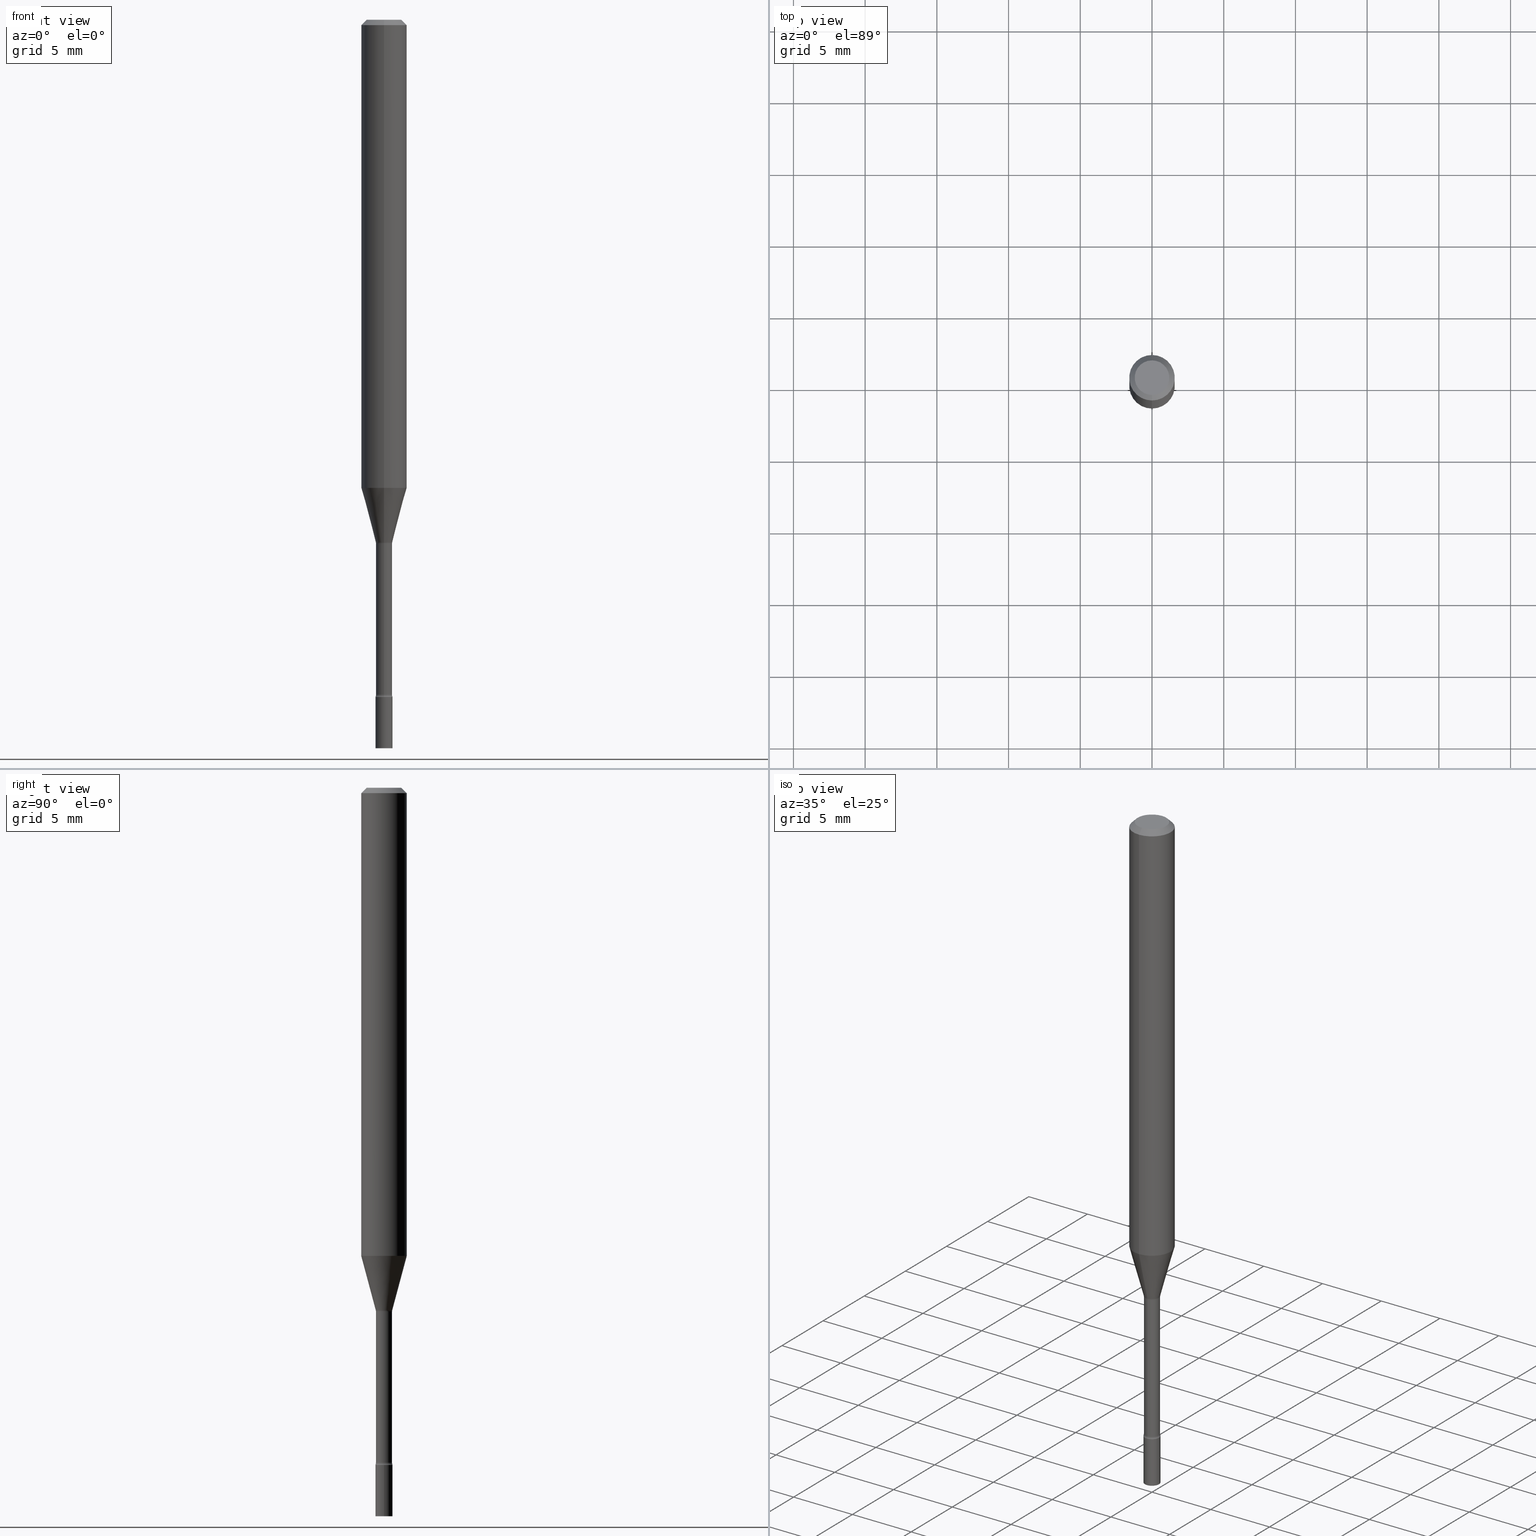
[diagram: canonical four-view strip — front | top / right | iso, engineering-drawing reading convention]
A machine part, canonical four-view strip (front | top / right | iso — engineering-drawing reading convention). The complete STEP part file that produces these views, byte-faithful:
ISO-10303-21;
HEADER;
FILE_DESCRIPTION (( 'STEP AP203' ),
    '1' );
FILE_NAME ('09370.STEP',
    '2024-03-08T23:25:55',
    ( '' ),
    ( '' ),
    'SwSTEP 2.0',
    'SolidWorks 2023',
    '' );
FILE_SCHEMA (( 'CONFIG_CONTROL_DESIGN' ));
ENDSEC;

DATA;
#1 = DIRECTION ( 'NONE',  ( -6.982962677686265922E-15, -1.000000000000000000, 0.000000000000000000 ) ) ;
#2 = ADVANCED_FACE ( 'NONE', ( #157 ), #231, .T. ) ;
#3 = AXIS2_PLACEMENT_3D ( 'NONE', #126, #411, #373 ) ;
#4 = CYLINDRICAL_SURFACE ( 'NONE', #292, 0.02210000000000002587 ) ;
#5 = CARTESIAN_POINT ( 'NONE',  ( 0.02350000000000000352, -6.654763431835035084E-15, -1.858999999999999986 ) ) ;
#6 = DIRECTION ( 'NONE',  ( -6.982962677686265922E-15, -1.000000000000000000, 0.000000000000000000 ) ) ;
#7 = DIRECTION ( 'NONE',  ( -6.982962677686265922E-15, -1.000000000000000000, 0.000000000000000000 ) ) ;
#8 = EDGE_CURVE ( 'NONE', #500, #516, #32, .T. ) ;
#9 = CARTESIAN_POINT ( 'NONE',  ( 4.440892098500625669E-16, 0.06250000000000000000, -2.182167078137229810E-16 ) ) ;
#10 = EDGE_LOOP ( 'NONE', ( #148, #470, #172, #480 ) ) ;
#11 = FACE_OUTER_BOUND ( 'NONE', #384, .T. ) ;
#12 = CIRCLE ( 'NONE', #518, 0.06250000000000000000 ) ;
#13 = ORIENTED_EDGE ( 'NONE', *, *, #67, .T. ) ;
#14 = LINE ( 'NONE', #26, #149 ) ;
#15 = ORIENTED_EDGE ( 'NONE', *, *, #512, .F. ) ;
#16 = EDGE_CURVE ( 'NONE', #372, #215, #336, .T. ) ;
#17 = FACE_OUTER_BOUND ( 'NONE', #338, .T. ) ;
#18 = CLOSED_SHELL ( 'NONE', ( #125, #246, #377, #352, #2, #50, #300, #286, #97, #30, #207, #465, #354, #53 ) ) ;
#19 = VERTEX_POINT ( 'NONE', #5 ) ;
#20 = CIRCLE ( 'NONE', #401, 0.01499999999999998904 ) ;
#21 = AXIS2_PLACEMENT_3D ( 'NONE', #468, #380, #182 ) ;
#22 = CARTESIAN_POINT ( 'NONE',  ( -1.578925554262779717E-16, -0.02261111260566898637, -1.434092501787273211 ) ) ;
#23 = CARTESIAN_POINT ( 'NONE',  ( -4.364351673553916201E-16, -0.06250000000000000000, 2.182167078137229810E-16 ) ) ;
#24 = VERTEX_POINT ( 'NONE', #47 ) ;
#25 = EDGE_CURVE ( 'NONE', #215, #61, #158, .T. ) ;
#26 = CARTESIAN_POINT ( 'NONE',  ( 1.570299446029823003E-16, 0.02210000000000002587, -7.716142788293254101E-17 ) ) ;
#27 = DIRECTION ( 'NONE',  ( -6.982962677686265922E-15, -1.000000000000000000, 0.000000000000000000 ) ) ;
#28 = EDGE_LOOP ( 'NONE', ( #345, #31, #102, #259 ) ) ;
#29 = PERSON_AND_ORGANIZATION ( #494, #195 ) ;
#30 = ADVANCED_FACE ( 'NONE', ( #318 ), #397, .F. ) ;
#31 = ORIENTED_EDGE ( 'NONE', *, *, #201, .F. ) ;
#32 = CIRCLE ( 'NONE', #425, 0.06250000000000000000 ) ;
#33 = CIRCLE ( 'NONE', #75, 0.02261111260566397996 ) ;
#34 = LOCAL_TIME ( 18, 25, 55.00000000000000000, #69 ) ;
#35 = APPROVAL_DATE_TIME ( #388, #360 ) ;
#36 = VERTEX_POINT ( 'NONE', #127 ) ;
#37 = EDGE_CURVE ( 'NONE', #72, #279, #80, .T. ) ;
#38 = APPROVAL_DATE_TIME ( #187, #508 ) ;
#39 = ORIENTED_EDGE ( 'NONE', *, *, #181, .T. ) ;
#40 = COORDINATED_UNIVERSAL_TIME_OFFSET ( 5, 0, .BEHIND. ) ;
#41 = DIRECTION ( 'NONE',  ( -6.982962677686265922E-15, -1.000000000000000000, 4.370956789862821150E-15 ) ) ;
#42 = DIRECTION ( 'NONE',  ( -6.982962677686265922E-15, -1.000000000000000000, 0.000000000000000000 ) ) ;
#43 = AXIS2_PLACEMENT_3D ( 'NONE', #131, #469, #225 ) ;
#44 = AXIS2_PLACEMENT_3D ( 'NONE', #371, #453, #52 ) ;
#45 = PLANE ( 'NONE',  #173 ) ;
#46 = CARTESIAN_POINT ( 'NONE',  ( 4.364351673553919652E-16, 0.06249999999999995143, -0.01500000000000024751 ) ) ;
#47 = CARTESIAN_POINT ( 'NONE',  ( 0.02350000000000000352, -7.147062300611918023E-15, -2.000000000000000000 ) ) ;
#48 = CARTESIAN_POINT ( 'NONE',  ( 4.890937612370273194E-29, -6.982962677686291165E-15, -2.000000000000000000 ) ) ;
#49 = CARTESIAN_POINT ( 'NONE',  ( -1.578925554262779717E-16, -0.02261111260566898637, -1.434092501787273211 ) ) ;
#50 = ADVANCED_FACE ( 'NONE', ( #129 ), #202, .T. ) ;
#51 = TOROIDAL_SURFACE ( 'NONE', #183, 0.03710000000000000103, 0.01500000000000002720 ) ;
#52 = DIRECTION ( 'NONE',  ( 1.000000000000000000, -6.982962677686269866E-15, 0.000000000000000000 ) ) ;
#53 = ADVANCED_FACE ( 'NONE', ( #170 ), #166, .F. ) ;
#54 = CARTESIAN_POINT ( 'NONE',  ( 3.516536558558135871E-29, -5.020641984631854302E-15, -1.437974787463811133 ) ) ;
#55 = DIRECTION ( 'NONE',  ( -2.445478591985838029E-29, 3.491467325019567696E-15, 1.000000000000000000 ) ) ;
#56 = AXIS2_PLACEMENT_3D ( 'NONE', #135, #184, #296 ) ;
#57 = ORIENTED_EDGE ( 'NONE', *, *, #37, .T. ) ;
#58 = CC_DESIGN_APPROVAL ( #508, ( #301 ) ) ;
#59 = EDGE_CURVE ( 'NONE', #501, #226, #263, .T. ) ;
#60 = DIRECTION ( 'NONE',  ( -6.982962677686266711E-15, -1.000000000000000000, 3.491467325019567302E-15 ) ) ;
#61 = VERTEX_POINT ( 'NONE', #349 ) ;
#62 = PERSON_AND_ORGANIZATION_ROLE ( 'design_owner' ) ;
#63 = AXIS2_PLACEMENT_3D ( 'NONE', #121, #163, #282 ) ;
#64 = ORIENTED_EDGE ( 'NONE', *, *, #421, .F. ) ;
#65 = VECTOR ( 'NONE', #206, 39.37007874015749564 ) ;
#66 = DIRECTION ( 'NONE',  ( -2.445478591985838029E-29, 3.491467325019567696E-15, 1.000000000000000000 ) ) ;
#67 = EDGE_CURVE ( 'NONE', #143, #372, #107, .T. ) ;
#68 = CARTESIAN_POINT ( 'NONE',  ( -1.640996229255817445E-16, -0.02350000000000649139, -1.858999999999999986 ) ) ;
#69 = COORDINATED_UNIVERSAL_TIME_OFFSET ( 5, 0, .BEHIND. ) ;
#70 = ORIENTED_EDGE ( 'NONE', *, *, #59, .F. ) ;
#71 = CARTESIAN_POINT ( 'NONE',  ( 3.142990583785493865E-29, -4.487321607350540658E-15, -1.285225147374218002 ) ) ;
#72 = VERTEX_POINT ( 'NONE', #188 ) ;
#73 = DATE_TIME_ROLE ( 'classification_date' ) ;
#74 = DIRECTION ( 'NONE',  ( -2.445478591985838029E-29, 3.491467325019567696E-15, 1.000000000000000000 ) ) ;
#75 = AXIS2_PLACEMENT_3D ( 'NONE', #369, #55, #289 ) ;
#76 = LOCAL_TIME ( 18, 25, 55.00000000000000000, #474 ) ;
#77 = MANIFOLD_SOLID_BREP ( 'Body-Move/Copy2[1]', #415 ) ;
#78 = DIRECTION ( 'NONE',  ( -2.445478591985838029E-29, 3.491467325019567696E-15, 1.000000000000000000 ) ) ;
#79 = ORIENTED_EDGE ( 'NONE', *, *, #37, .F. ) ;
#80 = CIRCLE ( 'NONE', #291, 0.02209999999999999812 ) ;
#81 = CC_DESIGN_DATE_AND_TIME_ASSIGNMENT ( #519, #73, ( #301 ) ) ;
#82 = AXIS2_PLACEMENT_3D ( 'NONE', #332, #466, #505 ) ;
#83 = LOCAL_TIME ( 18, 25, 55.00000000000000000, #312 ) ;
#84 = CARTESIAN_POINT ( 'NONE',  ( 0.000000000000000000, 0.000000000000000000, 0.000000000000000000 ) ) ;
#85 = EDGE_CURVE ( 'NONE', #501, #516, #344, .T. ) ;
#86 = CARTESIAN_POINT ( 'NONE',  ( -1.543234751768313085E-16, -0.02210000000000501841, -1.437974787463811133 ) ) ;
#87 = DIRECTION ( 'NONE',  ( -2.445478591985838029E-29, 3.491467325019567696E-15, 1.000000000000000000 ) ) ;
#88 = CARTESIAN_POINT ( 'NONE',  ( 2.636113549670428316E-16, 0.03709999999999358949, -1.852672283192177582 ) ) ;
#89 = CARTESIAN_POINT ( 'NONE',  ( -1.543234751768666594E-16, -0.02210000000000002587, 7.716142788293254101E-17 ) ) ;
#90 = ADVANCED_FACE ( 'NONE', ( #228 ), #118, .T. ) ;
#91 = AXIS2_PLACEMENT_3D ( 'NONE', #429, #477, #93 ) ;
#92 = LINE ( 'NONE', #46, #306 ) ;
#93 = DIRECTION ( 'NONE',  ( -6.982962677686265922E-15, -1.000000000000000000, 3.491467325019568091E-15 ) ) ;
#94 = PLANE ( 'NONE',  #3 ) ;
#95 = ORIENTED_EDGE ( 'NONE', *, *, #290, .T. ) ;
#96 = DIRECTION ( 'NONE',  ( -6.982962677686265922E-15, -1.000000000000000000, 0.000000000000000000 ) ) ;
#97 = ADVANCED_FACE ( 'NONE', ( #467 ), #124, .T. ) ;
#98 = AXIS2_PLACEMENT_3D ( 'NONE', #370, #288, #7 ) ;
#99 = DIRECTION ( 'NONE',  ( 1.000000000000000000, -7.105427357601001070E-15, 4.926315336922240552E-29 ) ) ;
#100 = EDGE_LOOP ( 'NONE', ( #387, #108, #57, #256 ) ) ;
#101 = DIRECTION ( 'NONE',  ( -2.445478591985838029E-29, 3.491467325019567696E-15, 1.000000000000000000 ) ) ;
#102 = ORIENTED_EDGE ( 'NONE', *, *, #368, .T. ) ;
#103 = APPLICATION_PROTOCOL_DEFINITION ( 'international standard', 'config_control_design', 1994, #343 ) ;
#104 = DIRECTION ( 'NONE',  ( -6.982962677686265922E-15, -1.000000000000000000, 3.491467325019567696E-15 ) ) ;
#105 = CARTESIAN_POINT ( 'NONE',  ( -4.364351673553603615E-16, -0.06250000000000451028, -1.285225147374217780 ) ) ;
#106 = DIRECTION ( 'NONE',  ( -4.851104656540964275E-15, -0.7071067811865500152, -0.7071067811865450192 ) ) ;
#107 = CIRCLE ( 'NONE', #472, 0.02210000000000006057 ) ;
#108 = ORIENTED_EDGE ( 'NONE', *, *, #512, .T. ) ;
#109 = PERSON_AND_ORGANIZATION_ROLE ( 'creator' ) ;
#110 = FACE_OUTER_BOUND ( 'NONE', #229, .T. ) ;
#111 = EDGE_LOOP ( 'NONE', ( #222, #95, #307, #394 ) ) ;
#112 = PERSON_AND_ORGANIZATION ( #494, #195 ) ;
#113 = CARTESIAN_POINT ( 'NONE',  ( -4.287811248607203282E-16, -0.06250000000000005551, -0.01499999999999981209 ) ) ;
#114 = EDGE_LOOP ( 'NONE', ( #456, #428, #356, #177 ) ) ;
#115 = DESIGN_CONTEXT ( 'detailed design', #399, 'design' ) ;
#116 = EDGE_CURVE ( 'NONE', #462, #516, #507, .T. ) ;
#117 = APPROVAL_ROLE ( '' ) ;
#118 = CYLINDRICAL_SURFACE ( 'NONE', #147, 0.02350000000000000352 ) ;
#119 = EDGE_LOOP ( 'NONE', ( #452, #396, #139, #302 ) ) ;
#120 = TOROIDAL_SURFACE ( 'NONE', #132, 0.03710000000000005654, 0.01499999999999999077 ) ;
#121 = CARTESIAN_POINT ( 'NONE',  ( -2.590679153421155323E-16, -0.03710000000000652359, -1.852672283192177582 ) ) ;
#122 = CALENDAR_DATE ( 2024, 8, 3 ) ;
#123 = LINE ( 'NONE', #89, #141 ) ;
#124 = CONICAL_SURFACE ( 'NONE', #276, 0.06250000000000000000, 0.7853981633974483900 ) ;
#125 = ADVANCED_FACE ( 'NONE', ( #395 ), #51, .F. ) ;
#126 = CARTESIAN_POINT ( 'NONE',  ( 1.640996229256761859E-16, 0.02349999999999301953, -2.000000000000000000 ) ) ;
#127 = CARTESIAN_POINT ( 'NONE',  ( -0.02350000000000000352, -6.569835700394226398E-15, -1.858999999999999986 ) ) ;
#128 = DIRECTION ( 'NONE',  ( -1.000000000000000000, 6.982962677686265922E-15, -4.883557194083112340E-29 ) ) ;
#129 = FACE_OUTER_BOUND ( 'NONE', #305, .T. ) ;
#130 = DIRECTION ( 'NONE',  ( -6.982962677686265922E-15, -1.000000000000000000, 3.483106191921935554E-15 ) ) ;
#131 = CARTESIAN_POINT ( 'NONE',  ( 7.070997803370271275E-46, -1.009542993615190427E-31, -2.891457658448894287E-17 ) ) ;
#132 = AXIS2_PLACEMENT_3D ( 'NONE', #169, #495, #362 ) ;
#133 = DIRECTION ( 'NONE',  ( -6.982962677686265922E-15, -1.000000000000000000, 0.000000000000000000 ) ) ;
#134 = ORIENTED_EDGE ( 'NONE', *, *, #198, .F. ) ;
#135 = CARTESIAN_POINT ( 'NONE',  ( 4.530652276630265840E-29, -6.468570703757412318E-15, -1.852672283192177582 ) ) ;
#136 = CC_DESIGN_PERSON_AND_ORGANIZATION_ASSIGNMENT ( #160, #308, ( #402 ) ) ;
#137 = DIRECTION ( 'NONE',  ( -2.445478591985838029E-29, 3.491467325019567696E-15, 1.000000000000000000 ) ) ;
#138 = CYLINDRICAL_SURFACE ( 'NONE', #82, 0.02350000000000000352 ) ;
#139 = ORIENTED_EDGE ( 'NONE', *, *, #116, .T. ) ;
#140 = EDGE_CURVE ( 'NONE', #24, #270, #217, .T. ) ;
#141 = VECTOR ( 'NONE', #243, 39.37007874015748143 ) ;
#142 = CARTESIAN_POINT ( 'NONE',  ( -4.364351673553912750E-16, -0.06250000000000005551, -0.01499999999999981209 ) ) ;
#143 = VERTEX_POINT ( 'NONE', #261 ) ;
#144 = CARTESIAN_POINT ( 'NONE',  ( 4.530670406511994597E-29, -6.468544740734887756E-15, -1.852672283192177582 ) ) ;
#145 = DIRECTION ( 'NONE',  ( -2.445468806185136597E-29, 3.491481338843145583E-15, 1.000000000000000000 ) ) ;
#146 = EDGE_LOOP ( 'NONE', ( #374, #13, #298, #79 ) ) ;
#147 = AXIS2_PLACEMENT_3D ( 'NONE', #386, #272, #199 ) ;
#148 = ORIENTED_EDGE ( 'NONE', *, *, #140, .T. ) ;
#149 = VECTOR ( 'NONE', #376, 39.37007874015748143 ) ;
#150 = PERSON_AND_ORGANIZATION ( #494, #195 ) ;
#151 = CARTESIAN_POINT ( 'NONE',  ( 4.530670406511994597E-29, -6.468544740734887756E-15, -1.852672283192177582 ) ) ;
#152 = DIRECTION ( 'NONE',  ( -6.982962677686265922E-15, -1.000000000000000000, 3.491467325019567696E-15 ) ) ;
#153 = CARTESIAN_POINT ( 'NONE',  ( 3.516522486823451947E-29, -5.020662136156834766E-15, -1.437974787463811133 ) ) ;
#154 = ORIENTED_EDGE ( 'NONE', *, *, #116, .F. ) ;
#155 = PERSON_AND_ORGANIZATION_ROLE ( 'creator' ) ;
#156 = DIRECTION ( 'NONE',  ( -2.445468806185136877E-29, 3.491481338843145188E-15, 1.000000000000000000 ) ) ;
#157 = FACE_OUTER_BOUND ( 'NONE', #262, .T. ) ;
#158 = CIRCLE ( 'NONE', #445, 0.02350000000000000352 ) ;
#159 = CIRCLE ( 'NONE', #487, 0.04749999999999999362 ) ;
#160 = PERSON_AND_ORGANIZATION ( #494, #195 ) ;
#161 = ADVANCED_FACE ( 'NONE', ( #110 ), #45, .T. ) ;
#162 = DIRECTION ( 'NONE',  ( -2.445468806185136877E-29, 3.491481338843145188E-15, 1.000000000000000000 ) ) ;
#163 = DIRECTION ( 'NONE',  ( -1.000000000000000000, 6.982962677686265922E-15, -4.883557194083112340E-29 ) ) ;
#164 = LINE ( 'NONE', #320, #409 ) ;
#165 = CARTESIAN_POINT ( 'NONE',  ( 3.316907271900976096E-16, 0.04749999999999999362, -1.803019862306739220E-16 ) ) ;
#166 = TOROIDAL_SURFACE ( 'NONE', #461, 0.03710000000000000103, 0.01500000000000002720 ) ;
#167 = AXIS2_PLACEMENT_3D ( 'NONE', #210, #327, #130 ) ;
#168 = CARTESIAN_POINT ( 'NONE',  ( -2.590679153421253437E-16, -0.03710000000000502479, -1.437974787463811133 ) ) ;
#169 = CARTESIAN_POINT ( 'NONE',  ( 4.530652276630265840E-29, -6.468570703757412318E-15, -1.852672283192177582 ) ) ;
#170 = FACE_OUTER_BOUND ( 'NONE', #197, .T. ) ;
#171 = CARTESIAN_POINT ( 'NONE',  ( -1.543234751768215957E-16, -0.02210000000000652762, -1.852672283192177582 ) ) ;
#172 = ORIENTED_EDGE ( 'NONE', *, *, #457, .F. ) ;
#173 = AXIS2_PLACEMENT_3D ( 'NONE', #403, #450, #245 ) ;
#174 = DIRECTION ( 'NONE',  ( 6.982962677686265922E-15, 1.000000000000000000, -3.483106191921935554E-15 ) ) ;
#175 = CC_DESIGN_PERSON_AND_ORGANIZATION_ASSIGNMENT ( #29, #347, ( #301 ) ) ;
#176 = LENGTH_MEASURE_WITH_UNIT ( LENGTH_MEASURE( 0.02539999999999999897 ), #414 );
#177 = ORIENTED_EDGE ( 'NONE', *, *, #16, .F. ) ;
#178 = EDGE_CURVE ( 'NONE', #270, #24, #242, .T. ) ;
#179 = CARTESIAN_POINT ( 'NONE',  ( 4.440892098500937762E-16, 0.06249999999999548278, -1.285225147374218224 ) ) ;
#180 = ORIENTED_EDGE ( 'NONE', *, *, #178, .T. ) ;
#181 = EDGE_CURVE ( 'NONE', #24, #19, #205, .T. ) ;
#182 = DIRECTION ( 'NONE',  ( 1.000000000000000000, 0.000000000000000000, 0.000000000000000000 ) ) ;
#183 = AXIS2_PLACEMENT_3D ( 'NONE', #185, #341, #104 ) ;
#184 = DIRECTION ( 'NONE',  ( -2.445478591985838029E-29, 3.491467325019567696E-15, 1.000000000000000000 ) ) ;
#185 = CARTESIAN_POINT ( 'NONE',  ( 3.516522486823451947E-29, -5.020662136156834766E-15, -1.437974787463811133 ) ) ;
#186 = ORIENTED_EDGE ( 'NONE', *, *, #25, .F. ) ;
#187 = DATE_AND_TIME ( #232, #76 ) ;
#188 = CARTESIAN_POINT ( 'NONE',  ( 1.570299446030275858E-16, 0.02209999999999497783, -1.437974787463811133 ) ) ;
#189 = ORIENTED_EDGE ( 'NONE', *, *, #16, .T. ) ;
#190 = SECURITY_CLASSIFICATION_LEVEL ( 'unclassified' ) ;
#191 = DIRECTION ( 'NONE',  ( -6.982962677686265922E-15, -1.000000000000000000, 4.370956789862821150E-15 ) ) ;
#192 = EDGE_CURVE ( 'NONE', #143, #61, #20, .T. ) ;
#193 = ORIENTED_EDGE ( 'NONE', *, *, #220, .F. ) ;
#194 = CIRCLE ( 'NONE', #481, 0.02209999999999999812 ) ;
#195 = ORGANIZATION ( 'UNSPECIFIED', 'UNSPECIFIED', '' ) ;
#196 = APPROVAL_STATUS ( 'not_yet_approved' ) ;
#197 = EDGE_LOOP ( 'NONE', ( #15, #295, #313, #200 ) ) ;
#198 = EDGE_CURVE ( 'NONE', #36, #19, #485, .T. ) ;
#199 = DIRECTION ( 'NONE',  ( 1.000000000000000000, -6.982962677686265922E-15, 4.876176775795935793E-29 ) ) ;
#200 = ORIENTED_EDGE ( 'NONE', *, *, #326, .T. ) ;
#201 = EDGE_CURVE ( 'NONE', #226, #501, #159, .T. ) ;
#202 = CONICAL_SURFACE ( 'NONE', #98, 0.02261111260566397996, 0.2617993877991501850 ) ;
#203 = CIRCLE ( 'NONE', #498, 0.02261111260566397996 ) ;
#204 = FACE_OUTER_BOUND ( 'NONE', #114, .T. ) ;
#205 = LINE ( 'NONE', #364, #250 ) ;
#206 = DIRECTION ( 'NONE',  ( -1.807323732225329350E-15, -0.2588190451025180194, 0.9659258262890689783 ) ) ;
#207 = ADVANCED_FACE ( 'NONE', ( #17 ), #361, .F. ) ;
#208 = CIRCLE ( 'NONE', #504, 0.06250000000000000000 ) ;
#209 =( GEOMETRIC_REPRESENTATION_CONTEXT ( 3 ) GLOBAL_UNCERTAINTY_ASSIGNED_CONTEXT ( ( #441 ) ) GLOBAL_UNIT_ASSIGNED_CONTEXT ( ( #334, #503, #506 ) ) REPRESENTATION_CONTEXT ( 'NONE', 'WORKASPACE' ) );
#210 = CARTESIAN_POINT ( 'NONE',  ( 3.668217887978764348E-31, -5.237200987529362293E-17, -0.01500000000000003067 ) ) ;
#211 = DIRECTION ( 'NONE',  ( -6.982962677686267499E-15, -1.000000000000000000, 0.000000000000000000 ) ) ;
#212 = ORIENTED_EDGE ( 'NONE', *, *, #502, .T. ) ;
#213 = CC_DESIGN_DATE_AND_TIME_ASSIGNMENT ( #515, #392, ( #497 ) ) ;
#214 = CYLINDRICAL_SURFACE ( 'NONE', #299, 0.06250000000000000000 ) ;
#215 = VERTEX_POINT ( 'NONE', #68 ) ;
#216 = VECTOR ( 'NONE', #237, 39.37007874015748143 ) ;
#217 = CIRCLE ( 'NONE', #348, 0.02350000000000000352 ) ;
#218 = ORIENTED_EDGE ( 'NONE', *, *, #59, .T. ) ;
#219 = FACE_OUTER_BOUND ( 'NONE', #478, .T. ) ;
#220 = EDGE_CURVE ( 'NONE', #462, #509, #12, .T. ) ;
#221 = ORIENTED_EDGE ( 'NONE', *, *, #239, .F. ) ;
#222 = ORIENTED_EDGE ( 'NONE', *, *, #381, .F. ) ;
#223 = APPROVAL_STATUS ( 'not_yet_approved' ) ;
#224 = AXIS2_PLACEMENT_3D ( 'NONE', #269, #431, #310 ) ;
#225 = DIRECTION ( 'NONE',  ( -6.982962677686266711E-15, -1.000000000000000000, 3.491467325019567302E-15 ) ) ;
#226 = VERTEX_POINT ( 'NONE', #275 ) ;
#227 = CALENDAR_DATE ( 2024, 8, 3 ) ;
#228 = FACE_OUTER_BOUND ( 'NONE', #235, .T. ) ;
#229 = EDGE_LOOP ( 'NONE', ( #329, #254 ) ) ;
#230 = APPROVAL_DATE_TIME ( #385, #398 ) ;
#231 = CYLINDRICAL_SURFACE ( 'NONE', #321, 0.06250000000000000000 ) ;
#232 = CALENDAR_DATE ( 2024, 8, 3 ) ;
#233 = LINE ( 'NONE', #358, #510 ) ;
#234 = CIRCLE ( 'NONE', #167, 0.06250000000000000000 ) ;
#235 = EDGE_LOOP ( 'NONE', ( #221, #180, #39, #134 ) ) ;
#236 = APPROVAL_PERSON_ORGANIZATION ( #400, #508, #280 ) ;
#237 = DIRECTION ( 'NONE',  ( -2.445478591985837749E-29, 3.491467325019568091E-15, 1.000000000000000000 ) ) ;
#238 = ORIENTED_EDGE ( 'NONE', *, *, #381, .T. ) ;
#239 = EDGE_CURVE ( 'NONE', #270, #36, #233, .T. ) ;
#240 = CALENDAR_DATE ( 2024, 8, 3 ) ;
#241 = DIRECTION ( 'NONE',  ( 7.105427357601001859E-15, 1.000000000000000000, 0.000000000000000000 ) ) ;
#242 = CIRCLE ( 'NONE', #436, 0.02350000000000000352 ) ;
#243 = DIRECTION ( 'NONE',  ( -2.445478591985837749E-29, 3.491467325019568091E-15, 1.000000000000000000 ) ) ;
#244 = PRODUCT ( '09370', '09370', '', ( #420 ) ) ;
#245 = DIRECTION ( 'NONE',  ( 1.000000000000000000, -6.982962677686265922E-15, 4.876176775795935793E-29 ) ) ;
#246 = ADVANCED_FACE ( 'NONE', ( #316 ), #317, .T. ) ;
#247 = DIRECTION ( 'NONE',  ( -2.445478591985838029E-29, 3.491467325019567696E-15, 1.000000000000000000 ) ) ;
#248 = CARTESIAN_POINT ( 'NONE',  ( 4.546126510698169319E-29, -6.490663808909408226E-15, -1.858999999999999986 ) ) ;
#249 = CARTESIAN_POINT ( 'NONE',  ( 3.668217887978764348E-31, -5.237200987529362293E-17, -0.01500000000000003067 ) ) ;
#250 = VECTOR ( 'NONE', #156, 39.37007874015748143 ) ;
#251 = DIRECTION ( 'NONE',  ( 4.937700262164548042E-15, 0.7071067811865451302, -0.7071067811865499042 ) ) ;
#252 = EDGE_CURVE ( 'NONE', #509, #462, #208, .T. ) ;
#253 = FACE_OUTER_BOUND ( 'NONE', #119, .T. ) ;
#254 = ORIENTED_EDGE ( 'NONE', *, *, #198, .T. ) ;
#255 = DIRECTION ( 'NONE',  ( 7.105427357601001859E-15, 1.000000000000000000, 0.000000000000000000 ) ) ;
#256 = ORIENTED_EDGE ( 'NONE', *, *, #433, .F. ) ;
#257 = AXIS2_PLACEMENT_3D ( 'NONE', #144, #458, #96 ) ;
#258 = CARTESIAN_POINT ( 'NONE',  ( 4.440892098500941706E-16, 0.06249999999999995143, -0.01500000000000024751 ) ) ;
#259 = ORIENTED_EDGE ( 'NONE', *, *, #8, .T. ) ;
#260 = ORIENTED_EDGE ( 'NONE', *, *, #460, .F. ) ;
#261 = CARTESIAN_POINT ( 'NONE',  ( 1.620037437533484049E-16, 0.02209999999999359352, -1.852672283192177582 ) ) ;
#262 = EDGE_LOOP ( 'NONE', ( #351, #390, #260, #154 ) ) ;
#263 = CIRCLE ( 'NONE', #43, 0.04749999999999999362 ) ;
#264 = APPLICATION_PROTOCOL_DEFINITION ( 'international standard', 'config_control_design', 1994, #399 ) ;
#265 = CIRCLE ( 'NONE', #44, 0.02350000000000000352 ) ;
#266 = DIRECTION ( 'NONE',  ( 1.000000000000000000, -6.982962677686269866E-15, 0.000000000000000000 ) ) ;
#267 = ORIENTED_EDGE ( 'NONE', *, *, #85, .T. ) ;
#268 = CC_DESIGN_PERSON_AND_ORGANIZATION_ASSIGNMENT ( #150, #155, ( #402 ) ) ;
#269 = CARTESIAN_POINT ( 'NONE',  ( 0.000000000000000000, 0.000000000000000000, 0.000000000000000000 ) ) ;
#270 = VERTEX_POINT ( 'NONE', #350 ) ;
#271 = COORDINATED_UNIVERSAL_TIME_OFFSET ( 5, 0, .BEHIND. ) ;
#272 = DIRECTION ( 'NONE',  ( -2.445468806185136597E-29, 3.491481338843145583E-15, 1.000000000000000000 ) ) ;
#273 = ORIENTED_EDGE ( 'NONE', *, *, #460, .T. ) ;
#274 = CARTESIAN_POINT ( 'NONE',  ( 3.668217887978764348E-31, -5.237200987529362293E-17, -0.01500000000000003067 ) ) ;
#275 = CARTESIAN_POINT ( 'NONE',  ( 3.840629472727447874E-16, 0.04749999999999999362, -1.947592745229183872E-16 ) ) ;
#276 = AXIS2_PLACEMENT_3D ( 'NONE', #274, #303, #437 ) ;
#277 = ORIENTED_EDGE ( 'NONE', *, *, #178, .F. ) ;
#278 = CC_DESIGN_APPROVAL ( #360, ( #402 ) ) ;
#279 = VERTEX_POINT ( 'NONE', #86 ) ;
#280 = APPROVAL_ROLE ( '' ) ;
#281 = DIRECTION ( 'NONE',  ( -2.445468806185136597E-29, 3.491481338843145583E-15, 1.000000000000000000 ) ) ;
#282 = DIRECTION ( 'NONE',  ( -6.982962677686269077E-15, -1.000000000000000000, 0.000000000000000000 ) ) ;
#283 = DIRECTION ( 'NONE',  ( 2.445478591985838029E-29, -3.491467325019567696E-15, -1.000000000000000000 ) ) ;
#284 = AXIS2_PLACEMENT_3D ( 'NONE', #378, #99, #255 ) ;
#285 = CARTESIAN_POINT ( 'NONE',  ( 3.507042512048188960E-29, -5.007087111045831166E-15, -1.434092501787273211 ) ) ;
#286 = ADVANCED_FACE ( 'NONE', ( #253 ), #214, .T. ) ;
#287 = CARTESIAN_POINT ( 'NONE',  ( 3.507042512048188960E-29, -5.007087111045831166E-15, -1.434092501787273211 ) ) ;
#288 = DIRECTION ( 'NONE',  ( -2.445478591985838029E-29, 3.491467325019567696E-15, 1.000000000000000000 ) ) ;
#289 = DIRECTION ( 'NONE',  ( -6.982962677686265922E-15, -1.000000000000000000, 0.000000000000000000 ) ) ;
#290 = EDGE_CURVE ( 'NONE', #422, #513, #33, .T. ) ;
#291 = AXIS2_PLACEMENT_3D ( 'NONE', #493, #87, #42 ) ;
#292 = AXIS2_PLACEMENT_3D ( 'NONE', #404, #247, #410 ) ;
#293 = APPROVAL_PERSON_ORGANIZATION ( #427, #398, #383 ) ;
#294 = LINE ( 'NONE', #9, #337 ) ;
#295 = ORIENTED_EDGE ( 'NONE', *, *, #440, .F. ) ;
#296 = DIRECTION ( 'NONE',  ( -6.982962677686265922E-15, -1.000000000000000000, 3.491467325019567696E-15 ) ) ;
#297 = FACE_OUTER_BOUND ( 'NONE', #10, .T. ) ;
#298 = ORIENTED_EDGE ( 'NONE', *, *, #319, .T. ) ;
#299 = AXIS2_PLACEMENT_3D ( 'NONE', #84, #496, #323 ) ;
#300 = ADVANCED_FACE ( 'NONE', ( #328 ), #463, .T. ) ;
#301 = SECURITY_CLASSIFICATION ( '', '', #190 ) ;
#302 = ORIENTED_EDGE ( 'NONE', *, *, #8, .F. ) ;
#303 = DIRECTION ( 'NONE',  ( 2.445478591985838029E-29, -3.491467325019567696E-15, -1.000000000000000000 ) ) ;
#304 = CC_DESIGN_PERSON_AND_ORGANIZATION_ASSIGNMENT ( #112, #109, ( #497 ) ) ;
#305 = EDGE_LOOP ( 'NONE', ( #335, #238, #193, #64 ) ) ;
#306 = VECTOR ( 'NONE', #251, 39.37007874015748143 ) ;
#307 = ORIENTED_EDGE ( 'NONE', *, *, #421, .T. ) ;
#308 = PERSON_AND_ORGANIZATION_ROLE ( 'design_supplier' ) ;
#309 = DIRECTION ( 'NONE',  ( -2.445478591985838029E-29, 3.491467325019567696E-15, 1.000000000000000000 ) ) ;
#310 = DIRECTION ( 'NONE',  ( -6.982962677686265922E-15, -1.000000000000000000, 3.491467325019568091E-15 ) ) ;
#311 = CARTESIAN_POINT ( 'NONE',  ( 3.668217887978764348E-31, -5.237200987529362293E-17, -0.01500000000000003067 ) ) ;
#312 = COORDINATED_UNIVERSAL_TIME_OFFSET ( 5, 0, .BEHIND. ) ;
#313 = ORIENTED_EDGE ( 'NONE', *, *, #433, .T. ) ;
#314 = DIRECTION ( 'NONE',  ( -2.445468806185136597E-29, 3.491481338843145583E-15, 1.000000000000000000 ) ) ;
#315 = CARTESIAN_POINT ( 'NONE',  ( 0.000000000000000000, 0.000000000000000000, 0.000000000000000000 ) ) ;
#316 = FACE_OUTER_BOUND ( 'NONE', #475, .T. ) ;
#317 = CYLINDRICAL_SURFACE ( 'NONE', #224, 0.02210000000000002587 ) ;
#318 = FACE_OUTER_BOUND ( 'NONE', #432, .T. ) ;
#319 = EDGE_CURVE ( 'NONE', #372, #279, #123, .T. ) ;
#320 = CARTESIAN_POINT ( 'NONE',  ( 1.606616180941167474E-16, 0.02261111260565897355, -1.434092501787273211 ) ) ;
#321 = AXIS2_PLACEMENT_3D ( 'NONE', #315, #511, #152 ) ;
#322 = EDGE_CURVE ( 'NONE', #509, #500, #294, .T. ) ;
#323 = DIRECTION ( 'NONE',  ( -6.982962677686265922E-15, -1.000000000000000000, 3.491467325019567696E-15 ) ) ;
#324 = DIRECTION ( 'NONE',  ( -2.445478591985838029E-29, 3.491467325019567696E-15, 1.000000000000000000 ) ) ;
#325 = DIMENSIONAL_EXPONENTS ( 1.000000000000000000, 0.000000000000000000, 0.000000000000000000, 0.000000000000000000, 0.000000000000000000, 0.000000000000000000, 0.000000000000000000 ) ;
#326 = EDGE_CURVE ( 'NONE', #279, #72, #194, .T. ) ;
#327 = DIRECTION ( 'NONE',  ( -2.445478591985838029E-29, 3.491467325019567696E-15, 1.000000000000000000 ) ) ;
#328 = FACE_OUTER_BOUND ( 'NONE', #111, .T. ) ;
#329 = ORIENTED_EDGE ( 'NONE', *, *, #457, .T. ) ;
#330 = TOROIDAL_SURFACE ( 'NONE', #56, 0.03710000000000005654, 0.01499999999999999077 ) ;
#331 = DIRECTION ( 'NONE',  ( -6.982962677686265922E-15, -1.000000000000000000, 0.000000000000000000 ) ) ;
#332 = CARTESIAN_POINT ( 'NONE',  ( 0.000000000000000000, 0.000000000000000000, 0.000000000000000000 ) ) ;
#333 = ADVANCED_FACE ( 'NONE', ( #408 ), #94, .T. ) ;
#334 =( CONVERSION_BASED_UNIT ( 'INCH', #176 ) LENGTH_UNIT ( ) NAMED_UNIT ( #325 ) );
#335 = ORIENTED_EDGE ( 'NONE', *, *, #440, .T. ) ;
#336 = CIRCLE ( 'NONE', #63, 0.01499999999999998904 ) ;
#337 = VECTOR ( 'NONE', #455, 39.37007874015748143 ) ;
#338 = EDGE_LOOP ( 'NONE', ( #186, #438 ) ) ;
#339 = CC_DESIGN_PERSON_AND_ORGANIZATION_ASSIGNMENT ( #423, #62, ( #244 ) ) ;
#340 = CARTESIAN_POINT ( 'NONE',  ( -3.773273898774340269E-16, -0.04749999999999999362, 1.369301213539405015E-16 ) ) ;
#341 = DIRECTION ( 'NONE',  ( -2.445478591985838029E-29, 3.491467325019567696E-15, 1.000000000000000000 ) ) ;
#342 = ORIENTED_EDGE ( 'NONE', *, *, #326, .F. ) ;
#343 = APPLICATION_CONTEXT ( 'configuration controlled 3d designs of mechanical parts and assemblies' ) ;
#344 = LINE ( 'NONE', #113, #346 ) ;
#345 = ORIENTED_EDGE ( 'NONE', *, *, #85, .F. ) ;
#346 = VECTOR ( 'NONE', #106, 39.37007874015748143 ) ;
#347 = PERSON_AND_ORGANIZATION_ROLE ( 'classification_officer' ) ;
#348 = AXIS2_PLACEMENT_3D ( 'NONE', #355, #145, #266 ) ;
#349 = CARTESIAN_POINT ( 'NONE',  ( 1.669775429036689529E-16, 0.02349999999999350525, -1.858999999999999986 ) ) ;
#350 = CARTESIAN_POINT ( 'NONE',  ( -0.02350000000000000352, -6.569835700394226398E-15, -2.000000000000000000 ) ) ;
#351 = ORIENTED_EDGE ( 'NONE', *, *, #220, .T. ) ;
#352 = ADVANCED_FACE ( 'NONE', ( #11 ), #391, .T. ) ;
#353 = ORIENTED_EDGE ( 'NONE', *, *, #319, .F. ) ;
#354 = ADVANCED_FACE ( 'NONE', ( #446 ), #4, .T. ) ;
#355 = CARTESIAN_POINT ( 'NONE',  ( 4.890937612370273194E-29, -6.982962677686291165E-15, -2.000000000000000000 ) ) ;
#356 = ORIENTED_EDGE ( 'NONE', *, *, #482, .T. ) ;
#357 = PERSON_AND_ORGANIZATION ( #494, #195 ) ;
#358 = CARTESIAN_POINT ( 'NONE',  ( -0.02350000000000000352, 1.669775429036235687E-16, -1.155949746209903035E-30 ) ) ;
#359 = AXIS2_PLACEMENT_3D ( 'NONE', #168, #128, #211 ) ;
#360 = APPROVAL ( #434, 'UNSPECIFIED' ) ;
#361 = PLANE ( 'NONE',  #91 ) ;
#362 = DIRECTION ( 'NONE',  ( -6.982962677686265922E-15, -1.000000000000000000, 3.491467325019567696E-15 ) ) ;
#363 = CARTESIAN_POINT ( 'NONE',  ( 4.546144702501673568E-29, -6.490637757211377196E-15, -1.858999999999999986 ) ) ;
#364 = CARTESIAN_POINT ( 'NONE',  ( 0.02350000000000000352, -1.640996229256272766E-16, 1.145901542312045115E-30 ) ) ;
#365 = CARTESIAN_POINT ( 'NONE',  ( 3.023754139721054960E-16, 0.02261111260565897702, -1.434092501787273211 ) ) ;
#366 = AXIS2_PLACEMENT_3D ( 'NONE', #285, #484, #133 ) ;
#367 = CC_DESIGN_SECURITY_CLASSIFICATION ( #301, ( #402 ) ) ;
#368 = EDGE_CURVE ( 'NONE', #226, #500, #92, .T. ) ;
#369 = CARTESIAN_POINT ( 'NONE',  ( 3.507042512048188960E-29, -5.007087111045831166E-15, -1.434092501787273211 ) ) ;
#370 = CARTESIAN_POINT ( 'NONE',  ( 3.507042512048188960E-29, -5.007087111045831166E-15, -1.434092501787273211 ) ) ;
#371 = CARTESIAN_POINT ( 'NONE',  ( 4.546126510698169319E-29, -6.490663808909408226E-15, -1.858999999999999986 ) ) ;
#372 = VERTEX_POINT ( 'NONE', #171 ) ;
#373 = DIRECTION ( 'NONE',  ( -1.000000000000000000, 6.982962677686265922E-15, -4.876176775795935793E-29 ) ) ;
#374 = ORIENTED_EDGE ( 'NONE', *, *, #502, .F. ) ;
#375 = CIRCLE ( 'NONE', #473, 0.02350000000000000352 ) ;
#376 = DIRECTION ( 'NONE',  ( -2.445478591985837749E-29, 3.491467325019568091E-15, 1.000000000000000000 ) ) ;
#377 = ADVANCED_FACE ( 'NONE', ( #204 ), #120, .F. ) ;
#378 = CARTESIAN_POINT ( 'NONE',  ( 2.636113549670323299E-16, 0.03709999999999498421, -1.437974787463811133 ) ) ;
#379 = EDGE_LOOP ( 'NONE', ( #499, #277 ) ) ;
#380 = DIRECTION ( 'NONE',  ( 0.000000000000000000, 0.000000000000000000, 1.000000000000000000 ) ) ;
#381 = EDGE_CURVE ( 'NONE', #422, #509, #164, .T. ) ;
#382 = AXIS2_PLACEMENT_3D ( 'NONE', #249, #283, #174 ) ;
#383 = APPROVAL_ROLE ( '' ) ;
#384 = EDGE_LOOP ( 'NONE', ( #70, #267, #273, #435 ) ) ;
#385 = DATE_AND_TIME ( #227, #34 ) ;
#386 = CARTESIAN_POINT ( 'NONE',  ( 0.000000000000000000, 0.000000000000000000, 0.000000000000000000 ) ) ;
#387 = ORIENTED_EDGE ( 'NONE', *, *, #290, .F. ) ;
#388 = DATE_AND_TIME ( #442, #393 ) ;
#389 = DIRECTION ( 'NONE',  ( -2.445478591985838029E-29, 3.491467325019567696E-15, 1.000000000000000000 ) ) ;
#390 = ORIENTED_EDGE ( 'NONE', *, *, #322, .T. ) ;
#391 = CONICAL_SURFACE ( 'NONE', #382, 0.06250000000000000000, 0.7853981633974483900 ) ;
#392 = DATE_TIME_ROLE ( 'creation_date' ) ;
#393 = LOCAL_TIME ( 18, 25, 55.00000000000000000, #40 ) ;
#394 = ORIENTED_EDGE ( 'NONE', *, *, #252, .F. ) ;
#395 = FACE_OUTER_BOUND ( 'NONE', #100, .T. ) ;
#396 = ORIENTED_EDGE ( 'NONE', *, *, #252, .T. ) ;
#397 = PLANE ( 'NONE',  #517 ) ;
#398 = APPROVAL ( #223, 'UNSPECIFIED' ) ;
#399 = APPLICATION_CONTEXT ( 'configuration controlled 3d designs of mechanical parts and assemblies' ) ;
#400 = PERSON_AND_ORGANIZATION ( #494, #195 ) ;
#401 = AXIS2_PLACEMENT_3D ( 'NONE', #88, #439, #241 ) ;
#402 = PRODUCT_DEFINITION_FORMATION_WITH_SPECIFIED_SOURCE ( 'ANY', '', #244, .NOT_KNOWN. ) ;
#403 = CARTESIAN_POINT ( 'NONE',  ( 4.546126510698169319E-29, -6.490663808909408226E-15, -1.858999999999999986 ) ) ;
#404 = CARTESIAN_POINT ( 'NONE',  ( 0.000000000000000000, 0.000000000000000000, 0.000000000000000000 ) ) ;
#405 = LINE ( 'NONE', #49, #65 ) ;
#406 = ADVANCED_BREP_SHAPE_REPRESENTATION ( '09370', ( #77, #430, #21 ), #209 ) ;
#407 = DIRECTION ( 'NONE',  ( 1.000000000000000000, -6.982962677686269866E-15, 0.000000000000000000 ) ) ;
#408 = FACE_OUTER_BOUND ( 'NONE', #379, .T. ) ;
#409 = VECTOR ( 'NONE', #448, 39.37007874015748143 ) ;
#410 = DIRECTION ( 'NONE',  ( -6.982962677686265922E-15, -1.000000000000000000, 3.491467325019568091E-15 ) ) ;
#411 = DIRECTION ( 'NONE',  ( 2.438088387897960049E-29, -3.491481338843145188E-15, -1.000000000000000000 ) ) ;
#412 = ORIENTED_EDGE ( 'NONE', *, *, #490, .F. ) ;
#413 = PRODUCT_RELATED_PRODUCT_CATEGORY ( 'detail', '', ( #244 ) ) ;
#414 =( LENGTH_UNIT ( ) NAMED_UNIT ( * ) SI_UNIT ( $, .METRE. ) );
#415 = CLOSED_SHELL ( 'NONE', ( #471, #161, #90, #333 ) ) ;
#416 = ORIENTED_EDGE ( 'NONE', *, *, #490, .T. ) ;
#417 = CIRCLE ( 'NONE', #257, 0.02210000000000006057 ) ;
#418 = CARTESIAN_POINT ( 'NONE',  ( 4.546144702501673568E-29, -6.490637757211377196E-15, -1.858999999999999986 ) ) ;
#419 = ORIENTED_EDGE ( 'NONE', *, *, #192, .F. ) ;
#420 = MECHANICAL_CONTEXT ( 'NONE', #343, 'mechanical' ) ;
#421 = EDGE_CURVE ( 'NONE', #513, #462, #405, .T. ) ;
#422 = VERTEX_POINT ( 'NONE', #365 ) ;
#423 = PERSON_AND_ORGANIZATION ( #494, #195 ) ;
#424 = ORIENTED_EDGE ( 'NONE', *, *, #25, .T. ) ;
#425 = AXIS2_PLACEMENT_3D ( 'NONE', #311, #74, #483 ) ;
#426 = CIRCLE ( 'NONE', #359, 0.01500000000000002720 ) ;
#427 = PERSON_AND_ORGANIZATION ( #494, #195 ) ;
#428 = ORIENTED_EDGE ( 'NONE', *, *, #192, .T. ) ;
#429 = CARTESIAN_POINT ( 'NONE',  ( 1.640996229256727347E-16, 0.02349999999999350872, -1.858999999999999986 ) ) ;
#430 = MANIFOLD_SOLID_BREP ( 'Body-Move/Copy2[2]', #18 ) ;
#431 = DIRECTION ( 'NONE',  ( -2.445478591985838029E-29, 3.491467325019567696E-15, 1.000000000000000000 ) ) ;
#432 = EDGE_LOOP ( 'NONE', ( #459, #218 ) ) ;
#433 = EDGE_CURVE ( 'NONE', #513, #279, #426, .T. ) ;
#434 = APPROVAL_STATUS ( 'not_yet_approved' ) ;
#435 = ORIENTED_EDGE ( 'NONE', *, *, #368, .F. ) ;
#436 = AXIS2_PLACEMENT_3D ( 'NONE', #48, #314, #491 ) ;
#437 = DIRECTION ( 'NONE',  ( 6.982962677686265922E-15, 1.000000000000000000, -3.483106191921935554E-15 ) ) ;
#438 = ORIENTED_EDGE ( 'NONE', *, *, #482, .F. ) ;
#439 = DIRECTION ( 'NONE',  ( 1.000000000000000000, -7.105427357601001070E-15, 4.926315336922240552E-29 ) ) ;
#440 = EDGE_CURVE ( 'NONE', #513, #422, #203, .T. ) ;
#441 = UNCERTAINTY_MEASURE_WITH_UNIT (LENGTH_MEASURE( 1.000000000000000082E-05 ), #334, 'distance_accuracy_value', 'NONE');
#442 = CALENDAR_DATE ( 2024, 8, 3 ) ;
#443 = CARTESIAN_POINT ( 'NONE',  ( 7.070997803370271275E-46, -1.009542993615190427E-31, -2.891457658448894287E-17 ) ) ;
#444 = DIRECTION ( 'NONE',  ( 2.445478591985837749E-29, -3.491467325019568091E-15, -1.000000000000000000 ) ) ;
#445 = AXIS2_PLACEMENT_3D ( 'NONE', #363, #324, #1 ) ;
#446 = FACE_OUTER_BOUND ( 'NONE', #146, .T. ) ;
#447 = CIRCLE ( 'NONE', #284, 0.01500000000000002720 ) ;
#448 = DIRECTION ( 'NONE',  ( 1.839019923739599526E-15, 0.2588190451025248473, 0.9659258262890670910 ) ) ;
#449 = PRODUCT_DEFINITION_SHAPE ( 'NONE', 'NONE',  #497 ) ;
#450 = DIRECTION ( 'NONE',  ( -2.438088387897960049E-29, 3.491481338843145188E-15, 1.000000000000000000 ) ) ;
#451 = DIRECTION ( 'NONE',  ( -2.445478591985838029E-29, 3.491467325019567696E-15, 1.000000000000000000 ) ) ;
#452 = ORIENTED_EDGE ( 'NONE', *, *, #322, .F. ) ;
#453 = DIRECTION ( 'NONE',  ( -2.445468806185136597E-29, 3.491481338843145583E-15, 1.000000000000000000 ) ) ;
#454 = AXIS2_PLACEMENT_3D ( 'NONE', #248, #281, #407 ) ;
#455 = DIRECTION ( 'NONE',  ( -2.445478591985837749E-29, 3.491467325019568091E-15, 1.000000000000000000 ) ) ;
#456 = ORIENTED_EDGE ( 'NONE', *, *, #67, .F. ) ;
#457 = EDGE_CURVE ( 'NONE', #19, #36, #265, .T. ) ;
#458 = DIRECTION ( 'NONE',  ( -2.445478591985838029E-29, 3.491467325019567696E-15, 1.000000000000000000 ) ) ;
#459 = ORIENTED_EDGE ( 'NONE', *, *, #201, .T. ) ;
#460 = EDGE_CURVE ( 'NONE', #516, #500, #234, .T. ) ;
#461 = AXIS2_PLACEMENT_3D ( 'NONE', #153, #309, #479 ) ;
#462 = VERTEX_POINT ( 'NONE', #105 ) ;
#463 = CONICAL_SURFACE ( 'NONE', #366, 0.02261111260566397996, 0.2617993877991501850 ) ;
#464 = CC_DESIGN_APPROVAL ( #398, ( #497 ) ) ;
#465 = ADVANCED_FACE ( 'NONE', ( #219 ), #330, .F. ) ;
#466 = DIRECTION ( 'NONE',  ( -2.445468806185136597E-29, 3.491481338843145583E-15, 1.000000000000000000 ) ) ;
#467 = FACE_OUTER_BOUND ( 'NONE', #28, .T. ) ;
#468 = CARTESIAN_POINT ( 'NONE',  ( 0.000000000000000000, 0.000000000000000000, 0.000000000000000000 ) ) ;
#469 = DIRECTION ( 'NONE',  ( -2.445478591985838029E-29, 3.491467325019567696E-15, 1.000000000000000000 ) ) ;
#470 = ORIENTED_EDGE ( 'NONE', *, *, #239, .T. ) ;
#471 = ADVANCED_FACE ( 'NONE', ( #297 ), #138, .T. ) ;
#472 = AXIS2_PLACEMENT_3D ( 'NONE', #151, #78, #27 ) ;
#473 = AXIS2_PLACEMENT_3D ( 'NONE', #418, #101, #331 ) ;
#474 = COORDINATED_UNIVERSAL_TIME_OFFSET ( 5, 0, .BEHIND. ) ;
#475 = EDGE_LOOP ( 'NONE', ( #416, #212, #342, #353 ) ) ;
#476 = SHAPE_DEFINITION_REPRESENTATION ( #449, #406 ) ;
#477 = DIRECTION ( 'NONE',  ( -2.445478591985837749E-29, 3.491467325019568091E-15, 1.000000000000000000 ) ) ;
#478 = EDGE_LOOP ( 'NONE', ( #419, #412, #189, #424 ) ) ;
#479 = DIRECTION ( 'NONE',  ( -6.982962677686265922E-15, -1.000000000000000000, 3.491467325019567696E-15 ) ) ;
#480 = ORIENTED_EDGE ( 'NONE', *, *, #181, .F. ) ;
#481 = AXIS2_PLACEMENT_3D ( 'NONE', #54, #492, #486 ) ;
#482 = EDGE_CURVE ( 'NONE', #61, #215, #375, .T. ) ;
#483 = DIRECTION ( 'NONE',  ( -6.982962677686265922E-15, -1.000000000000000000, 3.483106191921935554E-15 ) ) ;
#484 = DIRECTION ( 'NONE',  ( -2.445478591985838029E-29, 3.491467325019567696E-15, 1.000000000000000000 ) ) ;
#485 = CIRCLE ( 'NONE', #454, 0.02350000000000000352 ) ;
#486 = DIRECTION ( 'NONE',  ( -6.982962677686265922E-15, -1.000000000000000000, 0.000000000000000000 ) ) ;
#487 = AXIS2_PLACEMENT_3D ( 'NONE', #443, #137, #60 ) ;
#488 = DIRECTION ( 'NONE',  ( 6.982962677686265922E-15, 1.000000000000000000, -3.491467325019568091E-15 ) ) ;
#489 = LOCAL_TIME ( 18, 25, 55.00000000000000000, #271 ) ;
#490 = EDGE_CURVE ( 'NONE', #372, #143, #417, .T. ) ;
#491 = DIRECTION ( 'NONE',  ( 1.000000000000000000, -6.982962677686269866E-15, 0.000000000000000000 ) ) ;
#492 = DIRECTION ( 'NONE',  ( -2.445478591985838029E-29, 3.491467325019567696E-15, 1.000000000000000000 ) ) ;
#493 = CARTESIAN_POINT ( 'NONE',  ( 3.516536558558135871E-29, -5.020641984631854302E-15, -1.437974787463811133 ) ) ;
#494 = PERSON ( 'UNSPECIFIED', 'UNSPECIFIED', 'UNSPECIFIED', ('UNSPECIFIED'), ('UNSPECIFIED'), ('UNSPECIFIED') ) ;
#495 = DIRECTION ( 'NONE',  ( -2.445478591985838029E-29, 3.491467325019567696E-15, 1.000000000000000000 ) ) ;
#496 = DIRECTION ( 'NONE',  ( -2.445478591985838029E-29, 3.491467325019567696E-15, 1.000000000000000000 ) ) ;
#497 = PRODUCT_DEFINITION ( 'UNKNOWN', '', #402, #115 ) ;
#498 = AXIS2_PLACEMENT_3D ( 'NONE', #287, #451, #6 ) ;
#499 = ORIENTED_EDGE ( 'NONE', *, *, #140, .F. ) ;
#500 = VERTEX_POINT ( 'NONE', #258 ) ;
#501 = VERTEX_POINT ( 'NONE', #340 ) ;
#502 = EDGE_CURVE ( 'NONE', #143, #72, #14, .T. ) ;
#503 =( NAMED_UNIT ( * ) PLANE_ANGLE_UNIT ( ) SI_UNIT ( $, .RADIAN. ) );
#504 = AXIS2_PLACEMENT_3D ( 'NONE', #71, #389, #191 ) ;
#505 = DIRECTION ( 'NONE',  ( 1.000000000000000000, -6.982962677686265922E-15, 4.876176775795935793E-29 ) ) ;
#506 =( NAMED_UNIT ( * ) SI_UNIT ( $, .STERADIAN. ) SOLID_ANGLE_UNIT ( ) );
#507 = LINE ( 'NONE', #23, #216 ) ;
#508 = APPROVAL ( #196, 'UNSPECIFIED' ) ;
#509 = VERTEX_POINT ( 'NONE', #179 ) ;
#510 = VECTOR ( 'NONE', #162, 39.37007874015748143 ) ;
#511 = DIRECTION ( 'NONE',  ( -2.445478591985838029E-29, 3.491467325019567696E-15, 1.000000000000000000 ) ) ;
#512 = EDGE_CURVE ( 'NONE', #422, #72, #447, .T. ) ;
#513 = VERTEX_POINT ( 'NONE', #22 ) ;
#514 = CARTESIAN_POINT ( 'NONE',  ( 3.142990583785493865E-29, -4.487321607350540658E-15, -1.285225147374218002 ) ) ;
#515 = DATE_AND_TIME ( #122, #83 ) ;
#516 = VERTEX_POINT ( 'NONE', #142 ) ;
#517 = AXIS2_PLACEMENT_3D ( 'NONE', #165, #444, #488 ) ;
#518 = AXIS2_PLACEMENT_3D ( 'NONE', #514, #66, #41 ) ;
#519 = DATE_AND_TIME ( #240, #489 ) ;
#520 = APPROVAL_PERSON_ORGANIZATION ( #357, #360, #117 ) ;
ENDSEC;
END-ISO-10303-21;
